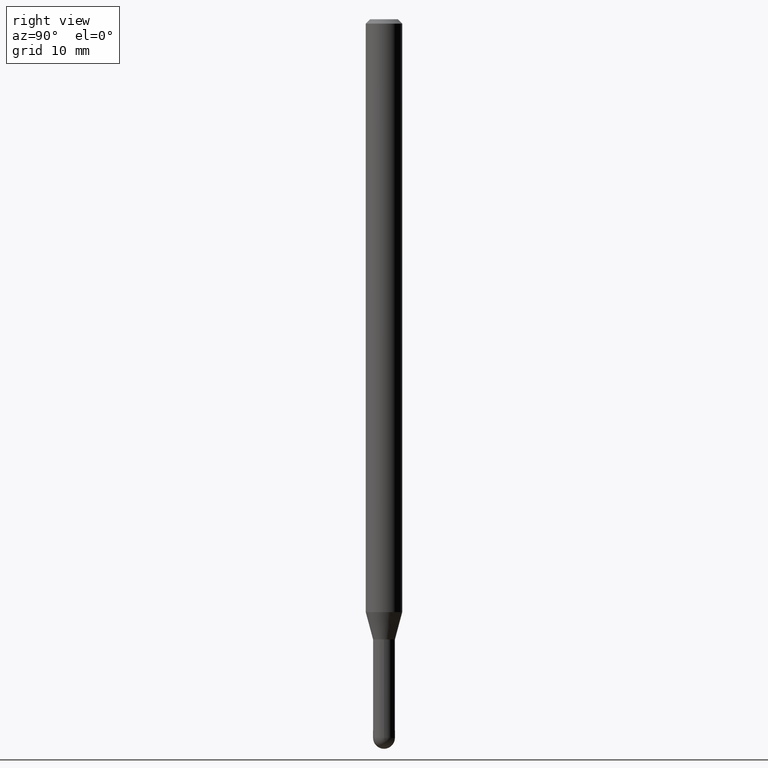
[diagram: clean part render]
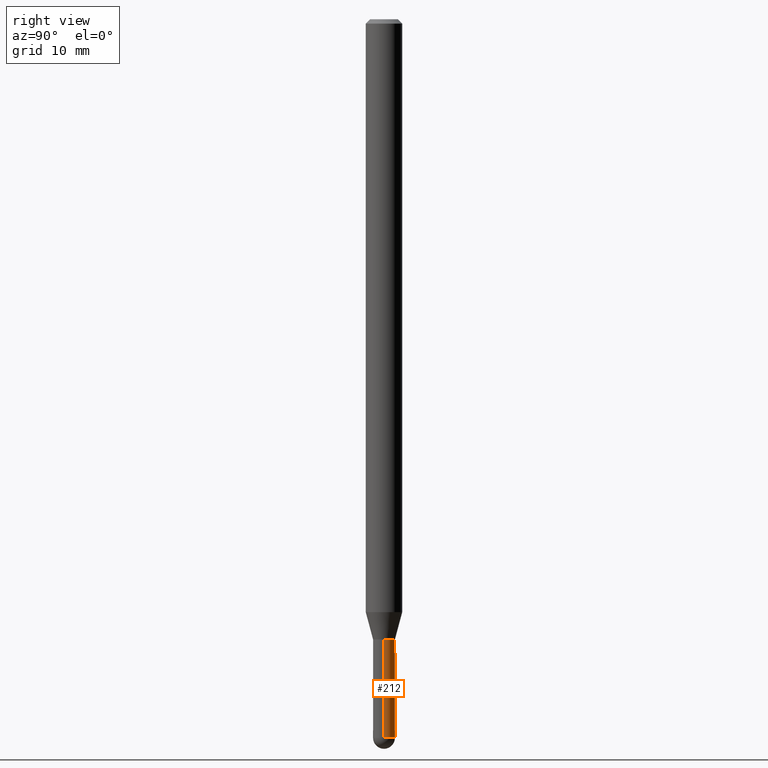
[diagram: same view with one face highlighted and labeled with its STEP entity id]
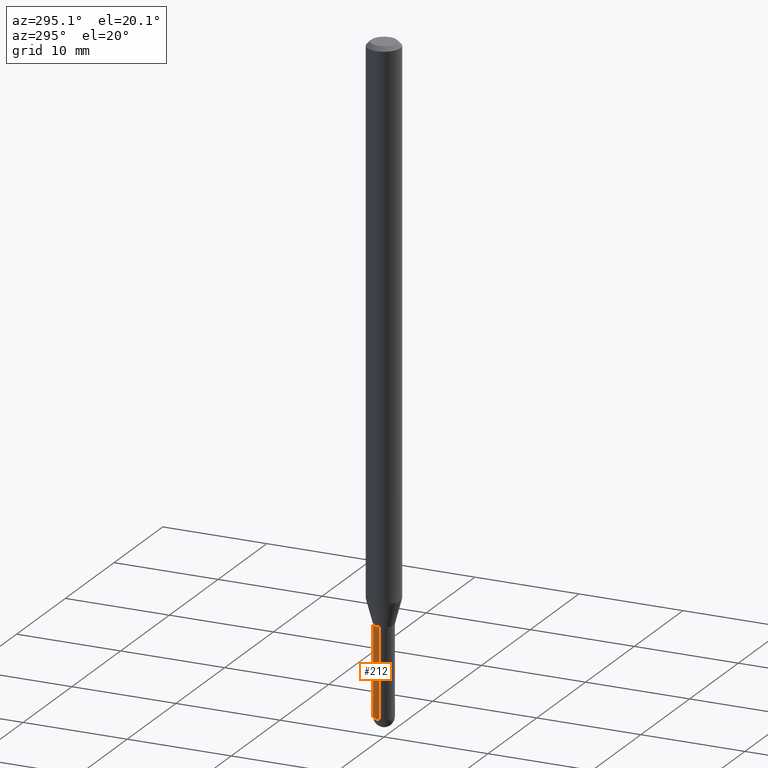
[diagram: same view with one face highlighted and labeled with its STEP entity id]
A machine part, right view. The second image highlights one B-rep face of the part: STEP entity #212.
A second angle (auxiliary view) of the same face is appended — the face is thin or edge-on in the first view.
In plain terms, the highlighted cylindrical surface (edge-blend (fillet) strip) has radius 0.9525 mm, axis along (-0, 0, 1).
Its self-contained STEP definition (entity closure, byte-faithful):
#32 = DIRECTION ( 'NONE',  ( -2.445468806185136877E-29, 3.491481338843145188E-15, 1.000000000000000000 ) ) ;
#37 = AXIS2_PLACEMENT_3D ( 'NONE', #498, #119, #205 ) ;
#50 = ORIENTED_EDGE ( 'NONE', *, *, #72, .F. ) ;
#58 = EDGE_CURVE ( 'NONE', #252, #478, #306, .T. ) ;
#65 = VECTOR ( 'NONE', #309, 39.37007874015748143 ) ;
#72 = EDGE_CURVE ( 'NONE', #478, #407, #225, .T. ) ;
#81 = CARTESIAN_POINT ( 'NONE',  ( 0.000000000000000000, 0.000000000000000000, 0.000000000000000000 ) ) ;
#88 = DIRECTION ( 'NONE',  ( 1.000000000000000000, -6.982962677686266711E-15, 4.876176775795935793E-29 ) ) ;
#90 = EDGE_CURVE ( 'NONE', #252, #169, #416, .T. ) ;
#119 = DIRECTION ( 'NONE',  ( -2.445468806185136597E-29, 3.491481338843145583E-15, 1.000000000000000000 ) ) ;
#130 = CARTESIAN_POINT ( 'NONE',  ( -0.03749999999999999861, -7.742131795061429304E-15, -2.125000000000000000 ) ) ;
#139 = CARTESIAN_POINT ( 'NONE',  ( -0.03749999999999999861, -7.742131795061429304E-15, -2.462500000000000355 ) ) ;
#154 = EDGE_CURVE ( 'NONE', #223, #407, #160, .T. ) ;
#160 = LINE ( 'NONE', #326, #479 ) ;
#161 = EDGE_CURVE ( 'NONE', #169, #223, #464, .T. ) ;
#165 = DIRECTION ( 'NONE',  ( 1.000000000000000000, -6.982962677686242256E-15, 0.000000000000000000 ) ) ;
#169 = VERTEX_POINT ( 'NONE', #473 ) ;
#202 = CARTESIAN_POINT ( 'NONE',  ( 6.021966935230899318E-29, -8.597772796901246653E-15, -2.462500000000000355 ) ) ;
#205 = DIRECTION ( 'NONE',  ( 1.000000000000000000, -6.982962677686242256E-15, 0.000000000000000000 ) ) ;
#208 = AXIS2_PLACEMENT_3D ( 'NONE', #230, #421, #380 ) ;
#212 = ADVANCED_FACE ( 'NONE', ( #308 ), #417, .T. ) ;
#221 = EDGE_LOOP ( 'NONE', ( #425, #373, #50, #443, #448 ) ) ;
#223 = VERTEX_POINT ( 'NONE', #139 ) ;
#225 = CIRCLE ( 'NONE', #208, 0.03749999999999999861 ) ;
#230 = CARTESIAN_POINT ( 'NONE',  ( 5.196621213143415268E-29, -7.419397845041685201E-15, -2.125000000000000000 ) ) ;
#252 = VERTEX_POINT ( 'NONE', #493 ) ;
#261 = AXIS2_PLACEMENT_3D ( 'NONE', #202, #437, #165 ) ;
#272 = AXIS2_PLACEMENT_3D ( 'NONE', #81, #334, #88 ) ;
#306 = LINE ( 'NONE', #455, #65 ) ;
#308 = FACE_OUTER_BOUND ( 'NONE', #221, .T. ) ;
#309 = DIRECTION ( 'NONE',  ( -2.445468806185136877E-29, 3.491481338843145188E-15, 1.000000000000000000 ) ) ;
#326 = CARTESIAN_POINT ( 'NONE',  ( -0.03749999999999999861, 2.664535259100375598E-16, -1.844600658845589808E-30 ) ) ;
#334 = DIRECTION ( 'NONE',  ( -2.445468806185136597E-29, 3.491481338843145583E-15, 1.000000000000000000 ) ) ;
#373 = ORIENTED_EDGE ( 'NONE', *, *, #154, .T. ) ;
#380 = DIRECTION ( 'NONE',  ( 1.000000000000000000, -6.982962677686268288E-15, 0.000000000000000000 ) ) ;
#381 = CARTESIAN_POINT ( 'NONE',  ( 0.03749999999999999861, -7.681258945454920203E-15, -2.125000000000000000 ) ) ;
#407 = VERTEX_POINT ( 'NONE', #130 ) ;
#416 = CIRCLE ( 'NONE', #37, 0.03749999999999999861 ) ;
#417 = CYLINDRICAL_SURFACE ( 'NONE', #272, 0.03749999999999999861 ) ;
#421 = DIRECTION ( 'NONE',  ( -2.445468806185136597E-29, 3.491481338843145583E-15, 1.000000000000000000 ) ) ;
#425 = ORIENTED_EDGE ( 'NONE', *, *, #161, .T. ) ;
#437 = DIRECTION ( 'NONE',  ( -2.445468806185136597E-29, 3.491481338843145583E-15, 1.000000000000000000 ) ) ;
#443 = ORIENTED_EDGE ( 'NONE', *, *, #58, .F. ) ;
#448 = ORIENTED_EDGE ( 'NONE', *, *, #90, .T. ) ;
#455 = CARTESIAN_POINT ( 'NONE',  ( 0.03749999999999999861, -2.618611004132350016E-16, 1.828566290923475922E-30 ) ) ;
#464 = CIRCLE ( 'NONE', #261, 0.03749999999999999861 ) ;
#473 = CARTESIAN_POINT ( 'NONE',  ( 2.618611004132948565E-16, 0.03749999999999135275, -2.462500000000000355 ) ) ;
#478 = VERTEX_POINT ( 'NONE', #381 ) ;
#479 = VECTOR ( 'NONE', #32, 39.37007874015748143 ) ;
#493 = CARTESIAN_POINT ( 'NONE',  ( 0.03749999999999999861, -8.270446421384699351E-15, -2.462500000000000355 ) ) ;
#498 = CARTESIAN_POINT ( 'NONE',  ( 6.021966935230899318E-29, -8.597772796901246653E-15, -2.462500000000000355 ) ) ;